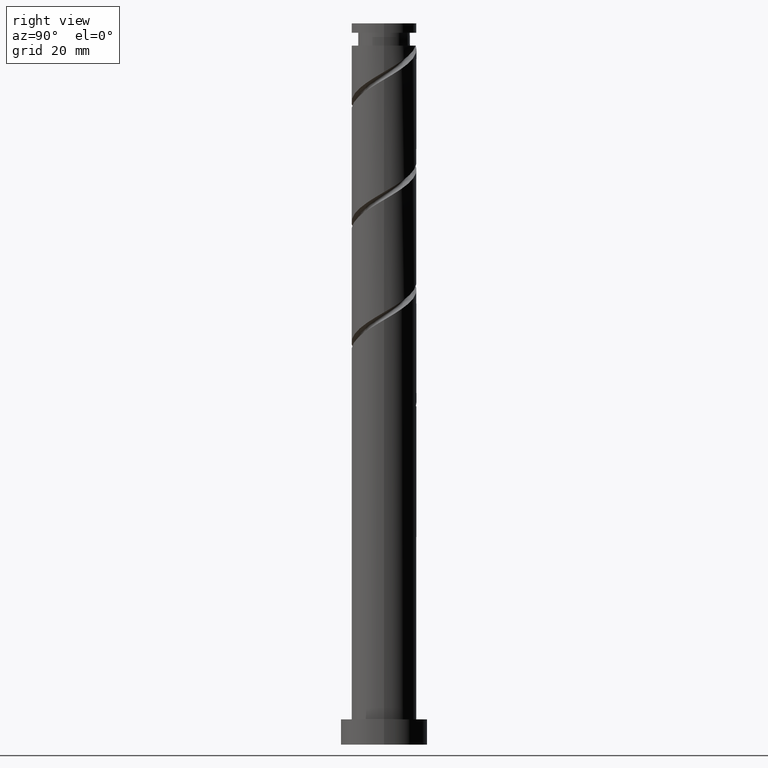
[diagram: clean part render]
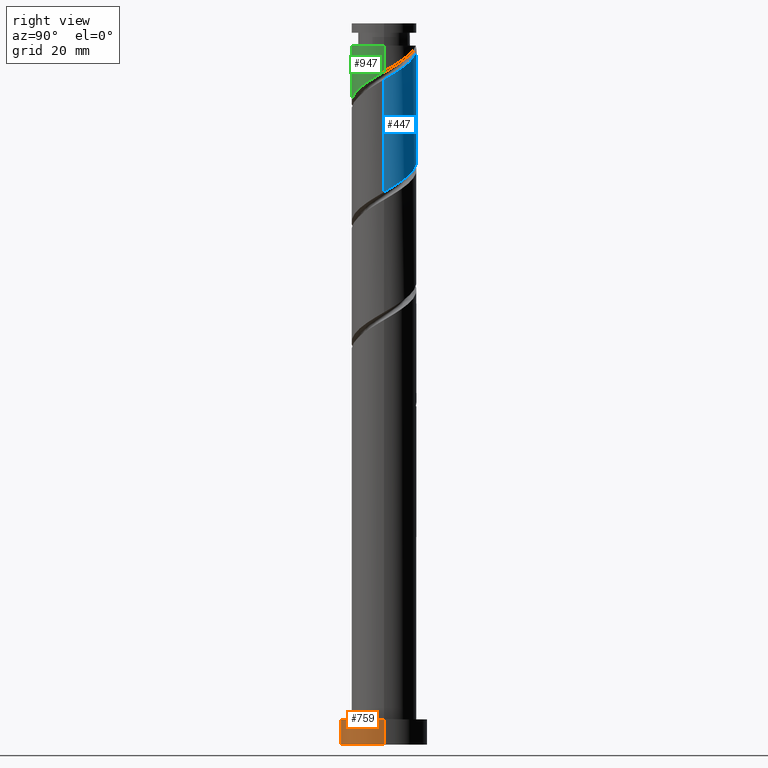
[diagram: same view with three faces highlighted in distinct colors, each labeled with its STEP entity id]
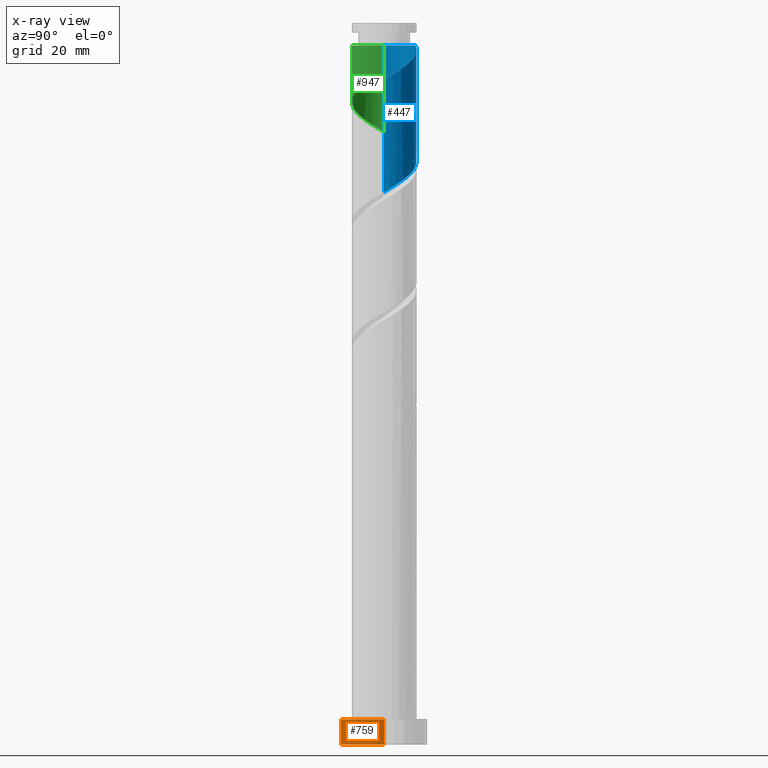
[diagram: x-ray of the same camera — body ghosted, the three highlighted faces saturated]
A machine part, right view with three faces highlighted in distinct colors.
The next image is the same camera in x-ray (body ghosted, the three faces saturated) — at least one of them is partly hidden behind the body in this view.
Their STEP definitions:

[orange] entity #759 — the highlighted cylindrical surface (partial cylindrical patch) has radius 12 mm, axis along (-0, -0, -1).
#22 = CYLINDRICAL_SURFACE ( 'NONE', #722, 12.00000000000000178 ) ;
#47 = ORIENTED_EDGE ( 'NONE', *, *, #1052, .F. ) ;
#89 = EDGE_CURVE ( 'NONE', #429, #1558, #152, .T. ) ;
#146 = LINE ( 'NONE', #1639, #1225 ) ;
#152 = CIRCLE ( 'NONE', #386, 12.00000000000000178 ) ;
#211 = ORIENTED_EDGE ( 'NONE', *, *, #938, .T. ) ;
#232 = CARTESIAN_POINT ( 'NONE',  ( 12.00000000000000178, 1.469576158976824144E-15, 7.000000000000000000 ) ) ;
#247 = DIRECTION ( 'NONE',  ( 1.000000000000000000, 0.000000000000000000, 0.000000000000000000 ) ) ;
#310 = FACE_OUTER_BOUND ( 'NONE', #1590, .T. ) ;
#312 = CARTESIAN_POINT ( 'NONE',  ( -12.00000000000000178, 0.000000000000000000, 0.000000000000000000 ) ) ;
#331 = AXIS2_PLACEMENT_3D ( 'NONE', #397, #1747, #247 ) ;
#386 = AXIS2_PLACEMENT_3D ( 'NONE', #716, #1266, #1663 ) ;
#397 = CARTESIAN_POINT ( 'NONE',  ( 0.000000000000000000, 0.000000000000000000, 0.000000000000000000 ) ) ;
#429 = VERTEX_POINT ( 'NONE', #1596 ) ;
#430 = CARTESIAN_POINT ( 'NONE',  ( 12.00000000000000178, 1.469576158976824144E-15, 0.000000000000000000 ) ) ;
#472 = EDGE_CURVE ( 'NONE', #1695, #1003, #1117, .T. ) ;
#563 = CARTESIAN_POINT ( 'NONE',  ( 0.000000000000000000, 0.000000000000000000, 7.000000000000000000 ) ) ;
#716 = CARTESIAN_POINT ( 'NONE',  ( 0.000000000000000000, 0.000000000000000000, 7.000000000000000000 ) ) ;
#722 = AXIS2_PLACEMENT_3D ( 'NONE', #563, #1385, #1109 ) ;
#748 = ORIENTED_EDGE ( 'NONE', *, *, #472, .T. ) ;
#759 = ADVANCED_FACE ( 'NONE', ( #310 ), #22, .T. ) ;
#899 = DIRECTION ( 'NONE',  ( -0.000000000000000000, -0.000000000000000000, -1.000000000000000000 ) ) ;
#938 = EDGE_CURVE ( 'NONE', #429, #1695, #1574, .T. ) ;
#1003 = VERTEX_POINT ( 'NONE', #430 ) ;
#1052 = EDGE_CURVE ( 'NONE', #1558, #1003, #146, .T. ) ;
#1054 = DIRECTION ( 'NONE',  ( -0.000000000000000000, -0.000000000000000000, -1.000000000000000000 ) ) ;
#1109 = DIRECTION ( 'NONE',  ( -1.000000000000000000, 0.000000000000000000, 0.000000000000000000 ) ) ;
#1117 = CIRCLE ( 'NONE', #331, 12.00000000000000178 ) ;
#1225 = VECTOR ( 'NONE', #1054, 1000.000000000000000 ) ;
#1266 = DIRECTION ( 'NONE',  ( 0.000000000000000000, 0.000000000000000000, 1.000000000000000000 ) ) ;
#1381 = ORIENTED_EDGE ( 'NONE', *, *, #89, .F. ) ;
#1385 = DIRECTION ( 'NONE',  ( -0.000000000000000000, -0.000000000000000000, -1.000000000000000000 ) ) ;
#1422 = CARTESIAN_POINT ( 'NONE',  ( -12.00000000000000178, 0.000000000000000000, 7.000000000000000000 ) ) ;
#1558 = VERTEX_POINT ( 'NONE', #232 ) ;
#1574 = LINE ( 'NONE', #1422, #1625 ) ;
#1590 = EDGE_LOOP ( 'NONE', ( #47, #1381, #211, #748 ) ) ;
#1596 = CARTESIAN_POINT ( 'NONE',  ( -12.00000000000000178, 0.000000000000000000, 7.000000000000000000 ) ) ;
#1625 = VECTOR ( 'NONE', #899, 1000.000000000000000 ) ;
#1639 = CARTESIAN_POINT ( 'NONE',  ( 12.00000000000000178, 1.469576158976824144E-15, 7.000000000000000000 ) ) ;
#1663 = DIRECTION ( 'NONE',  ( 1.000000000000000000, 0.000000000000000000, 0.000000000000000000 ) ) ;
#1695 = VERTEX_POINT ( 'NONE', #312 ) ;
#1747 = DIRECTION ( 'NONE',  ( 0.000000000000000000, 0.000000000000000000, 1.000000000000000000 ) ) ;

[blue] entity #447 — the highlighted cylindrical surface (edge-blend (fillet) strip) has radius 9 mm, axis along (-0, -0, -1).
#34 = CARTESIAN_POINT ( 'NONE',  ( 6.848745664630785157, 5.958070628232094990, 157.0195247114235428 ) ) ;
#53 = DIRECTION ( 'NONE',  ( -0.000000000000000000, -0.000000000000000000, -1.000000000000000000 ) ) ;
#73 = VECTOR ( 'NONE', #1222, 1000.000000000000000 ) ;
#116 = EDGE_CURVE ( 'NONE', #1241, #1648, #1378, .T. ) ;
#126 = FACE_OUTER_BOUND ( 'NONE', #1646, .T. ) ;
#143 = CARTESIAN_POINT ( 'NONE',  ( -2.858968085434729911, 8.533832754774707041, 163.2695247114235713 ) ) ;
#180 = CARTESIAN_POINT ( 'NONE',  ( 7.503094065217678299, 4.970269554913019583, 156.3250802669790858 ) ) ;
#213 = EDGE_CURVE ( 'NONE', #1097, #1714, #854, .T. ) ;
#244 = LINE ( 'NONE', #527, #73 ) ;
#256 = CYLINDRICAL_SURFACE ( 'NONE', #475, 9.000000000000001776 ) ;
#264 = CARTESIAN_POINT ( 'NONE',  ( -9.000000000000003553, 0.9045340337332905545, 169.3552205529999242 ) ) ;
#270 = CARTESIAN_POINT ( 'NONE',  ( 0.000000000000000000, 0.000000000000000000, 200.0000000000000000 ) ) ;
#278 = CARTESIAN_POINT ( 'NONE',  ( -7.527640107733483354, 5.073318164499758254, 166.7417469336457998 ) ) ;
#283 = CARTESIAN_POINT ( 'NONE',  ( 9.000000000000012434, -2.811311475400588352E-15, 184.4281802784357183 ) ) ;
#290 = CARTESIAN_POINT ( 'NONE',  ( 9.000000000000014211, 0.9045340337332870018, 184.9616066476250182 ) ) ;
#305 = CARTESIAN_POINT ( 'NONE',  ( 9.000000000000001776, 1.102182119232617911E-15, 200.0000000000000000 ) ) ;
#321 = CARTESIAN_POINT ( 'NONE',  ( 5.073318164499761806, 7.527640107733480690, 158.4084136003124854 ) ) ;
#380 = ORIENTED_EDGE ( 'NONE', *, *, #1017, .F. ) ;
#391 = ORIENTED_EDGE ( 'NONE', *, *, #116, .T. ) ;
#415 = CARTESIAN_POINT ( 'NONE',  ( 8.055926730819905401, 4.012735290006252953, 186.8806358225346287 ) ) ;
#425 = CARTESIAN_POINT ( 'NONE',  ( 0.6298023580710870872, 9.055786646093704206, 161.1861913780902853 ) ) ;
#442 = CARTESIAN_POINT ( 'NONE',  ( 4.970269554913031129, 7.503094065217685404, 189.6584136003124286 ) ) ;
#447 = ADVANCED_FACE ( 'NONE', ( #126 ), #256, .T. ) ;
#455 = CARTESIAN_POINT ( 'NONE',  ( 5.961031914565274370, 6.742855367982786952, 157.7139691558679999 ) ) ;
#475 = AXIS2_PLACEMENT_3D ( 'NONE', #270, #802, #1201 ) ;
#527 = CARTESIAN_POINT ( 'NONE',  ( -9.000000000000001776, 0.000000000000000000, 200.0000000000000000 ) ) ;
#537 = CARTESIAN_POINT ( 'NONE',  ( -5.958070628232096766, 6.848745664630782493, 165.3528580447568856 ) ) ;
#547 = CARTESIAN_POINT ( 'NONE',  ( 1.790977386791920534, 8.820000000000000284, 160.4917469336458566 ) ) ;
#555 = CARTESIAN_POINT ( 'NONE',  ( -4.970269554913022247, 7.503094065217677411, 164.6584136003124570 ) ) ;
#575 = CARTESIAN_POINT ( 'NONE',  ( -1.790977386791817949, 8.820000000000019824, 193.8250802669790858 ) ) ;
#583 = CARTESIAN_POINT ( 'NONE',  ( 8.584213353906314126, 2.952152415512749428, 186.1861913780902000 ) ) ;
#589 = CARTESIAN_POINT ( 'NONE',  ( 9.000000000000012434, -2.811311475400588746E-15, 184.4281802784357183 ) ) ;
#593 = DIRECTION ( 'NONE',  ( -1.000000000000000000, 0.000000000000000000, 0.000000000000000000 ) ) ;
#623 =( BOUNDED_CURVE ( )  B_SPLINE_CURVE ( 2, ( #283, #290, #1493, #583, #415, #1513, #1119, #1083, #442, #1624, #949, #1356, #1394, #1235, #712 ),
 .UNSPECIFIED., .F., .T. ) 
 B_SPLINE_CURVE_WITH_KNOTS ( ( 3, 2, 2, 2, 2, 2, 2, 3 ),
 ( 0.6795317669814462391, 0.6875000000000000000, 0.6979166666666668517, 0.7083333333333333703, 0.7187500000000002220, 0.7291666666666669627, 0.7395833333333335924, 0.7500000000000003331 ),
 .UNSPECIFIED. ) 
 CURVE ( )  GEOMETRIC_REPRESENTATION_ITEM ( )  RATIONAL_B_SPLINE_CURVE ( ( 0.9062941362546405033, 0.9031415850403446965, 0.9090909090909201629, 0.9013135103398384196, 0.9090909090909201629, 0.9013135103398384196, 0.9090909090909201629, 0.9013135103398384196, 0.9090909090909201629, 0.9013135103398384196, 0.9090909090909201629, 0.9013135103398384196, 0.9090909090909201629, 0.9013135103398381975, 0.9090909090909203849 ) ) 
 REPRESENTATION_ITEM ( '' )  );
#674 = VERTEX_POINT ( 'NONE', #703 ) ;
#679 = EDGE_CURVE ( 'NONE', #1241, #1714, #623, .T. ) ;
#680 = CARTESIAN_POINT ( 'NONE',  ( -9.000000000000001776, -5.353454830816053105E-15, 169.8886469221891673 ) ) ;
#703 = CARTESIAN_POINT ( 'NONE',  ( -9.000000000000001776, -5.353454830816053105E-15, 169.8886469221891673 ) ) ;
#712 = CARTESIAN_POINT ( 'NONE',  ( -1.790977386791817949, 8.820000000000021600, 193.8250802669790858 ) ) ;
#758 =( BOUNDED_CURVE ( )  B_SPLINE_CURVE ( 2, ( #680, #264, #1341, #1634, #1481, #278, #1085, #537, #555, #1351, #143, #1219, #933, #425, #547, #1626, #1130, #321, #455, #34, #180, #845, #1368, #978, #1671, #988, #1111 ),
 .UNSPECIFIED., .F., .T. ) 
 B_SPLINE_CURVE_WITH_KNOTS ( ( 3, 2, 2, 2, 2, 2, 2, 2, 2, 2, 2, 2, 2, 3 ),
 ( 0.4295317669814462391, 0.4375000000000000000, 0.4479166666666666852, 0.4583333333333333148, 0.4687500000000000000, 0.4791666666666666852, 0.4895833333333333148, 0.5000000000000000000, 0.5104166666666666297, 0.5208333333333333703, 0.5312500000000000000, 0.5416666666666666297, 0.5520833333333333703, 0.5545317669814462391 ),
 .UNSPECIFIED. ) 
 CURVE ( )  GEOMETRIC_REPRESENTATION_ITEM ( )  RATIONAL_B_SPLINE_CURVE ( ( 0.9062941362546339530, 0.9031415850403381462, 0.9090909090909135015, 0.9013135103398318693, 0.9090909090909135015, 0.9013135103398318693, 0.9090909090909135015, 0.9013135103398318693, 0.9090909090909135015, 0.9013135103398318693, 0.9090909090909135015, 0.9013135103398318693, 0.9090909090909135015, 0.9013135103398318693, 0.9090909090909135015, 0.9013135103398318693, 0.9090909090909135015, 0.9013135103398318693, 0.9090909090909135015, 0.9013135103398318693, 0.9090909090909135015, 0.9013135103398318693, 0.9090909090909135015, 0.9013135103398318693, 0.9090909090909135015, 0.9072628343904073356, 0.9062941362546338420 ) ) 
 REPRESENTATION_ITEM ( '' )  );
#802 = DIRECTION ( 'NONE',  ( -0.000000000000000000, -0.000000000000000000, -1.000000000000000000 ) ) ;
#845 = CARTESIAN_POINT ( 'NONE',  ( 8.157442465804573217, 3.982468481593940179, 155.6306358225347140 ) ) ;
#854 = CIRCLE ( 'NONE', #1315, 8.999999999999991118 ) ;
#933 = CARTESIAN_POINT ( 'NONE',  ( -0.5528326656022128915, 8.983004844919275200, 161.8806358225346571 ) ) ;
#949 = CARTESIAN_POINT ( 'NONE',  ( 2.858968085434740125, 8.533832754774715923, 191.0473024892012859 ) ) ;
#978 = CARTESIAN_POINT ( 'NONE',  ( 8.910223043744849747, 1.735467689275507874, 154.2417469336457998 ) ) ;
#988 = CARTESIAN_POINT ( 'NONE',  ( 9.000000000000001776, 0.2766775649190639785, 153.3851439435506734 ) ) ;
#1017 = EDGE_CURVE ( 'NONE', #1097, #674, #244, .T. ) ;
#1083 = CARTESIAN_POINT ( 'NONE',  ( 5.958070628232114530, 6.848745664630788710, 188.9639691558679715 ) ) ;
#1085 = CARTESIAN_POINT ( 'NONE',  ( -6.742855367982788728, 5.961031914565270817, 166.0473024892012859 ) ) ;
#1097 = VERTEX_POINT ( 'NONE', #1583 ) ;
#1111 = CARTESIAN_POINT ( 'NONE',  ( 9.000000000000003553, 1.271071677707722200E-14, 153.2219802555225385 ) ) ;
#1119 = CARTESIAN_POINT ( 'NONE',  ( 6.742855367982805603, 5.961031914565271705, 188.2695247114235144 ) ) ;
#1130 = CARTESIAN_POINT ( 'NONE',  ( 4.012735290006259170, 8.055926730819887638, 159.1028580447568856 ) ) ;
#1201 = DIRECTION ( 'NONE',  ( -1.000000000000000000, 0.000000000000000000, 0.000000000000000000 ) ) ;
#1219 = CARTESIAN_POINT ( 'NONE',  ( -1.735467689275513425, 8.910223043744847971, 162.5750802669791142 ) ) ;
#1222 = DIRECTION ( 'NONE',  ( -0.000000000000000000, -0.000000000000000000, -1.000000000000000000 ) ) ;
#1235 = CARTESIAN_POINT ( 'NONE',  ( -0.6298023580711152869, 9.055786646093721970, 193.1306358225347424 ) ) ;
#1237 = CARTESIAN_POINT ( 'NONE',  ( 9.000000000000003553, 1.271071677707722200E-14, 153.2219802555225385 ) ) ;
#1241 = VERTEX_POINT ( 'NONE', #589 ) ;
#1257 = DIRECTION ( 'NONE',  ( -0.000000000000000000, -0.000000000000000000, -1.000000000000000000 ) ) ;
#1315 = AXIS2_PLACEMENT_3D ( 'NONE', #1505, #53, #593 ) ;
#1341 = CARTESIAN_POINT ( 'NONE',  ( -8.820000000000000284, 1.790977386791918535, 168.8250802669791710 ) ) ;
#1351 = CARTESIAN_POINT ( 'NONE',  ( -3.982468481593946397, 8.157442465804569665, 163.9639691558679999 ) ) ;
#1356 = CARTESIAN_POINT ( 'NONE',  ( 1.735467689275523417, 8.910223043744862181, 191.7417469336457714 ) ) ;
#1363 = VECTOR ( 'NONE', #1257, 1000.000000000000000 ) ;
#1368 = CARTESIAN_POINT ( 'NONE',  ( 8.533832754774707041, 2.858968085434723694, 154.9361913780902569 ) ) ;
#1378 = LINE ( 'NONE', #305, #1363 ) ;
#1394 = CARTESIAN_POINT ( 'NONE',  ( 0.5528326656022229946, 8.983004844919284082, 192.4361913780902000 ) ) ;
#1481 = CARTESIAN_POINT ( 'NONE',  ( -8.055926730819891191, 4.012735290006253841, 167.4361913780902285 ) ) ;
#1493 = CARTESIAN_POINT ( 'NONE',  ( 8.820000000000012719, 1.790977386791917647, 185.4917469336457430 ) ) ;
#1505 = CARTESIAN_POINT ( 'NONE',  ( 0.000000000000000000, 0.000000000000000000, 193.8250802669791142 ) ) ;
#1513 = CARTESIAN_POINT ( 'NONE',  ( 7.527640107733501118, 5.073318164499759142, 187.5750802669791142 ) ) ;
#1528 = ORIENTED_EDGE ( 'NONE', *, *, #1641, .F. ) ;
#1583 = CARTESIAN_POINT ( 'NONE',  ( -8.999999999999991118, 0.000000000000000000, 193.8250802669791142 ) ) ;
#1624 = CARTESIAN_POINT ( 'NONE',  ( 3.982468481593958387, 8.157442465804582099, 190.3528580447569425 ) ) ;
#1626 = CARTESIAN_POINT ( 'NONE',  ( 2.952152415512758310, 8.584213353906294586, 159.7973024892013143 ) ) ;
#1634 = CARTESIAN_POINT ( 'NONE',  ( -8.584213353906296362, 2.952152415512749872, 168.1306358225347992 ) ) ;
#1641 = EDGE_CURVE ( 'NONE', #674, #1648, #758, .T. ) ;
#1646 = EDGE_LOOP ( 'NONE', ( #1666, #391, #1528, #380, #1685 ) ) ;
#1648 = VERTEX_POINT ( 'NONE', #1237 ) ;
#1666 = ORIENTED_EDGE ( 'NONE', *, *, #679, .F. ) ;
#1671 = CARTESIAN_POINT ( 'NONE',  ( 8.983004844919276977, 0.5528326656022090058, 153.5473024892013143 ) ) ;
#1685 = ORIENTED_EDGE ( 'NONE', *, *, #213, .T. ) ;
#1714 = VERTEX_POINT ( 'NONE', #575 ) ;

[green] entity #947 — the highlighted cylindrical surface (edge-blend (fillet) strip) has radius 9 mm, axis along (-0, -0, -1).
#3 = CARTESIAN_POINT ( 'NONE',  ( -4.012735290006254729, -8.055926730819891191, 175.7695247114235713 ) ) ;
#73 = VECTOR ( 'NONE', #1222, 1000.000000000000000 ) ;
#82 = CARTESIAN_POINT ( 'NONE',  ( 8.055926730819887638, -4.012735290006258282, 184.1028580447568856 ) ) ;
#237 = CARTESIAN_POINT ( 'NONE',  ( 8.820000000000000284, -1.790977386791919646, 185.4917469336457430 ) ) ;
#244 = LINE ( 'NONE', #527, #73 ) ;
#351 = CARTESIAN_POINT ( 'NONE',  ( 9.000000000000003553, -0.9045340337332975489, 186.0218872196666666 ) ) ;
#357 = CARTESIAN_POINT ( 'NONE',  ( 0.000000000000000000, 0.000000000000000000, 200.0000000000000000 ) ) ;
#382 = VECTOR ( 'NONE', #1041, 1000.000000000000000 ) ;
#398 = EDGE_CURVE ( 'NONE', #1434, #674, #503, .T. ) ;
#410 = CARTESIAN_POINT ( 'NONE',  ( -1.790977386791919201, -8.820000000000000284, 177.1584136003124854 ) ) ;
#468 = VERTEX_POINT ( 'NONE', #1480 ) ;
#471 = AXIS2_PLACEMENT_3D ( 'NONE', #944, #1471, #1214 ) ;
#493 = CARTESIAN_POINT ( 'NONE',  ( 4.970269554913016918, -7.503094065217679187, 181.3250802669791426 ) ) ;
#497 = LINE ( 'NONE', #1291, #382 ) ;
#503 =( BOUNDED_CURVE ( )  B_SPLINE_CURVE ( 2, ( #902, #351, #237, #884, #82, #771, #1701, #1304, #493, #1026, #1313, #631, #1181, #1218, #410, #1191, #3, #659, #666, #1350, #1077, #1208, #1047, #1461, #540, #529, #678 ),
 .UNSPECIFIED., .F., .T. ) 
 B_SPLINE_CURVE_WITH_KNOTS ( ( 3, 2, 2, 2, 2, 2, 2, 2, 2, 2, 2, 2, 2, 3 ),
 ( 0.3045317669814462946, 0.3125000000000000000, 0.3229166666666666852, 0.3333333333333333148, 0.3437500000000000000, 0.3541666666666666852, 0.3645833333333333148, 0.3750000000000000000, 0.3854166666666666852, 0.3958333333333333148, 0.4062500000000000000, 0.4166666666666666852, 0.4270833333333333148, 0.4295317669814462391 ),
 .UNSPECIFIED. ) 
 CURVE ( )  GEOMETRIC_REPRESENTATION_ITEM ( )  RATIONAL_B_SPLINE_CURVE ( ( 0.9062941362546338420, 0.9031415850403381462, 0.9090909090909135015, 0.9013135103398318693, 0.9090909090909135015, 0.9013135103398318693, 0.9090909090909135015, 0.9013135103398318693, 0.9090909090909135015, 0.9013135103398318693, 0.9090909090909135015, 0.9013135103398318693, 0.9090909090909135015, 0.9013135103398318693, 0.9090909090909135015, 0.9013135103398318693, 0.9090909090909135015, 0.9013135103398318693, 0.9090909090909135015, 0.9013135103398318693, 0.9090909090909135015, 0.9013135103398318693, 0.9090909090909135015, 0.9013135103398318693, 0.9090909090909135015, 0.9072628343904073356, 0.9062941362546339530 ) ) 
 REPRESENTATION_ITEM ( '' )  );
#527 = CARTESIAN_POINT ( 'NONE',  ( -9.000000000000001776, 0.000000000000000000, 200.0000000000000000 ) ) ;
#529 = CARTESIAN_POINT ( 'NONE',  ( -9.000000000000001776, -0.2766775649190619246, 170.0518106102173306 ) ) ;
#540 = CARTESIAN_POINT ( 'NONE',  ( -8.983004844919275200, -0.5528326656022123364, 170.2139691558679999 ) ) ;
#631 = CARTESIAN_POINT ( 'NONE',  ( 1.735467689275508540, -8.910223043744849747, 179.2417469336457998 ) ) ;
#659 = CARTESIAN_POINT ( 'NONE',  ( -5.073318164499758254, -7.527640107733483354, 175.0750802669790858 ) ) ;
#666 = CARTESIAN_POINT ( 'NONE',  ( -5.961031914565273482, -6.742855367982787840, 174.3806358225346571 ) ) ;
#674 = VERTEX_POINT ( 'NONE', #703 ) ;
#678 = CARTESIAN_POINT ( 'NONE',  ( -9.000000000000001776, -5.353454830816053105E-15, 169.8886469221891673 ) ) ;
#699 = ORIENTED_EDGE ( 'NONE', *, *, #1622, .T. ) ;
#703 = CARTESIAN_POINT ( 'NONE',  ( -9.000000000000001776, -5.353454830816053105E-15, 169.8886469221891673 ) ) ;
#751 = FACE_OUTER_BOUND ( 'NONE', #839, .T. ) ;
#771 = CARTESIAN_POINT ( 'NONE',  ( 7.527640107733481578, -5.073318164499760918, 183.4084136003124854 ) ) ;
#839 = EDGE_LOOP ( 'NONE', ( #1154, #699, #1579, #1454 ) ) ;
#884 = CARTESIAN_POINT ( 'NONE',  ( 8.584213353906294586, -2.952152415512757422, 184.7973024892013711 ) ) ;
#902 = CARTESIAN_POINT ( 'NONE',  ( 9.000000000000001776, 3.170202302047495679E-15, 186.5553135888558813 ) ) ;
#944 = CARTESIAN_POINT ( 'NONE',  ( 0.000000000000000000, 0.000000000000000000, 193.8250802669791142 ) ) ;
#947 = ADVANCED_FACE ( 'NONE', ( #751 ), #1562, .T. ) ;
#1017 = EDGE_CURVE ( 'NONE', #1097, #674, #244, .T. ) ;
#1026 = CARTESIAN_POINT ( 'NONE',  ( 3.982468481593944620, -8.157442465804571441, 180.6306358225346571 ) ) ;
#1041 = DIRECTION ( 'NONE',  ( -0.000000000000000000, -0.000000000000000000, -1.000000000000000000 ) ) ;
#1047 = CARTESIAN_POINT ( 'NONE',  ( -8.533832754774707041, -2.858968085434729023, 171.6028580447569141 ) ) ;
#1051 = CARTESIAN_POINT ( 'NONE',  ( 9.000000000000001776, 3.170202302047495285E-15, 186.5553135888558813 ) ) ;
#1077 = CARTESIAN_POINT ( 'NONE',  ( -7.503094065217677411, -4.970269554913020471, 172.9917469336457430 ) ) ;
#1097 = VERTEX_POINT ( 'NONE', #1583 ) ;
#1154 = ORIENTED_EDGE ( 'NONE', *, *, #1417, .F. ) ;
#1181 = CARTESIAN_POINT ( 'NONE',  ( 0.5528326656022094499, -8.983004844919276977, 178.5473024892013427 ) ) ;
#1191 = CARTESIAN_POINT ( 'NONE',  ( -2.952152415512752981, -8.584213353906296362, 176.4639691558679999 ) ) ;
#1208 = CARTESIAN_POINT ( 'NONE',  ( -8.157442465804571441, -3.982468481593944620, 172.2973024892013711 ) ) ;
#1214 = DIRECTION ( 'NONE',  ( -1.000000000000000000, 0.000000000000000000, 0.000000000000000000 ) ) ;
#1218 = CARTESIAN_POINT ( 'NONE',  ( -0.6298023580710896407, -9.055786646093705983, 177.8528580447568856 ) ) ;
#1222 = DIRECTION ( 'NONE',  ( -0.000000000000000000, -0.000000000000000000, -1.000000000000000000 ) ) ;
#1291 = CARTESIAN_POINT ( 'NONE',  ( 9.000000000000001776, 1.102182119232617911E-15, 200.0000000000000000 ) ) ;
#1304 = CARTESIAN_POINT ( 'NONE',  ( 5.958070628232094990, -6.848745664630784269, 182.0195247114235997 ) ) ;
#1313 = CARTESIAN_POINT ( 'NONE',  ( 2.858968085434727691, -8.533832754774707041, 179.9361913780902569 ) ) ;
#1319 = CIRCLE ( 'NONE', #471, 8.999999999999991118 ) ;
#1350 = CARTESIAN_POINT ( 'NONE',  ( -6.848745664630784269, -5.958070628232095878, 173.6861913780902569 ) ) ;
#1417 = EDGE_CURVE ( 'NONE', #468, #1434, #497, .T. ) ;
#1434 = VERTEX_POINT ( 'NONE', #1051 ) ;
#1454 = ORIENTED_EDGE ( 'NONE', *, *, #398, .F. ) ;
#1461 = CARTESIAN_POINT ( 'NONE',  ( -8.910223043744847971, -1.735467689275510983, 170.9084136003125423 ) ) ;
#1471 = DIRECTION ( 'NONE',  ( -0.000000000000000000, -0.000000000000000000, -1.000000000000000000 ) ) ;
#1480 = CARTESIAN_POINT ( 'NONE',  ( 8.999999999999991118, 1.102182119232617319E-15, 193.8250802669791142 ) ) ;
#1562 = CYLINDRICAL_SURFACE ( 'NONE', #1686, 9.000000000000001776 ) ;
#1579 = ORIENTED_EDGE ( 'NONE', *, *, #1017, .T. ) ;
#1583 = CARTESIAN_POINT ( 'NONE',  ( -8.999999999999991118, 0.000000000000000000, 193.8250802669791142 ) ) ;
#1593 = DIRECTION ( 'NONE',  ( -1.000000000000000000, 0.000000000000000000, 0.000000000000000000 ) ) ;
#1622 = EDGE_CURVE ( 'NONE', #468, #1097, #1319, .T. ) ;
#1686 = AXIS2_PLACEMENT_3D ( 'NONE', #357, #1735, #1593 ) ;
#1701 = CARTESIAN_POINT ( 'NONE',  ( 6.742855367982787840, -5.961031914565274370, 182.7139691558679999 ) ) ;
#1735 = DIRECTION ( 'NONE',  ( -0.000000000000000000, -0.000000000000000000, -1.000000000000000000 ) ) ;